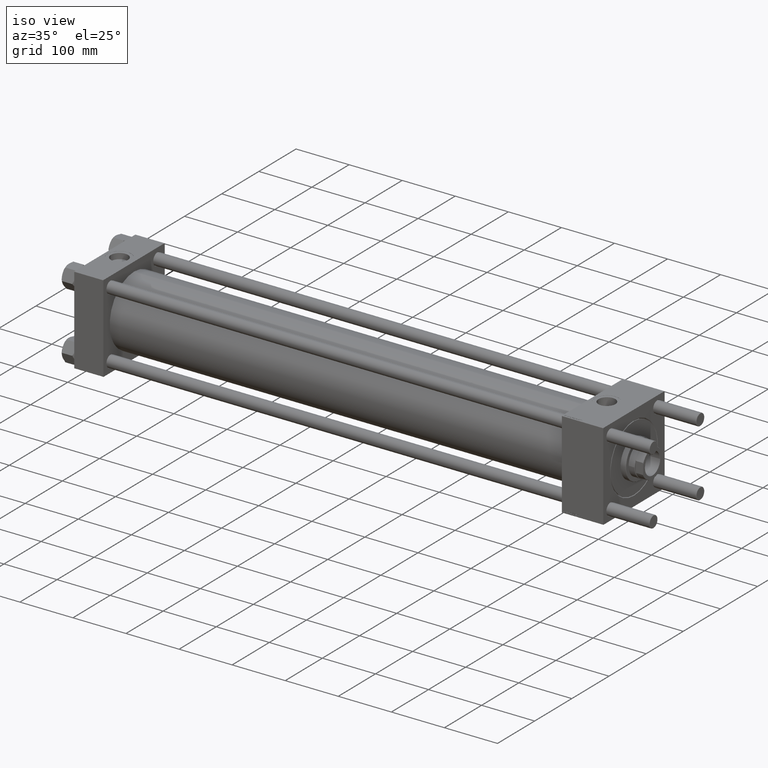
[diagram: clean part render]
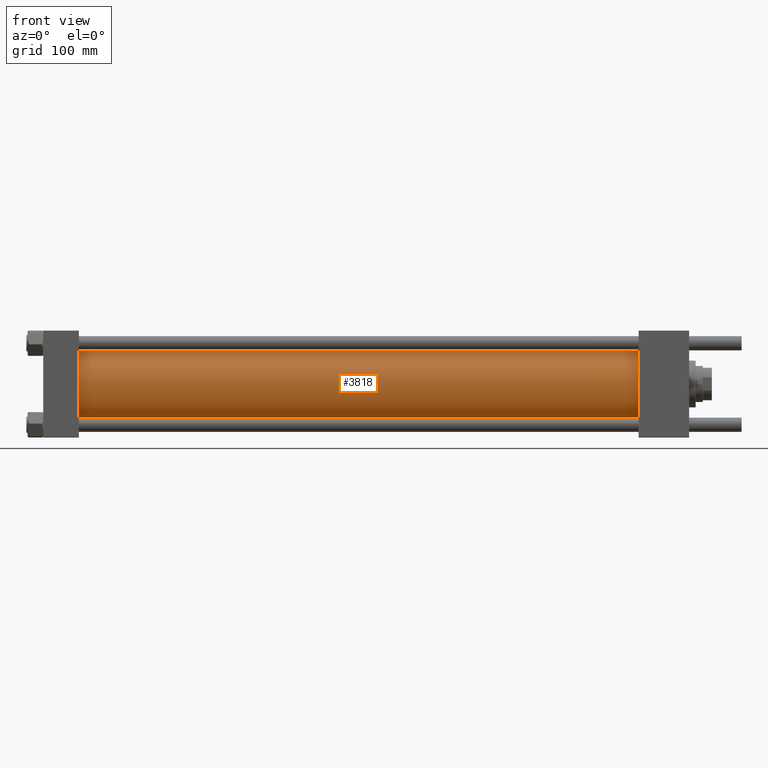
[diagram: tour spotlight — one face highlighted and labeled with its STEP entity id]
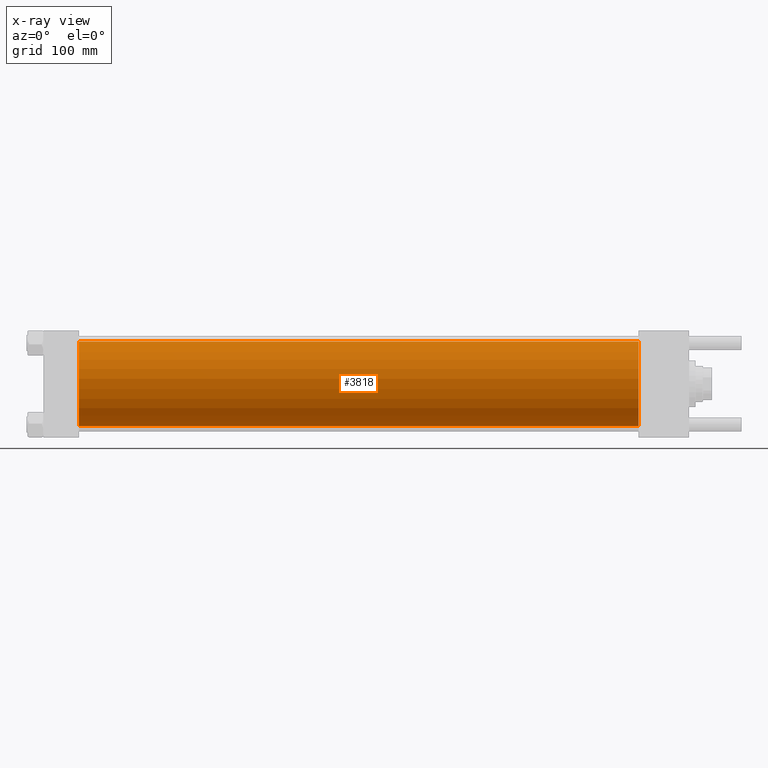
[diagram: x-ray of the same camera — body ghosted, this tour face saturated]
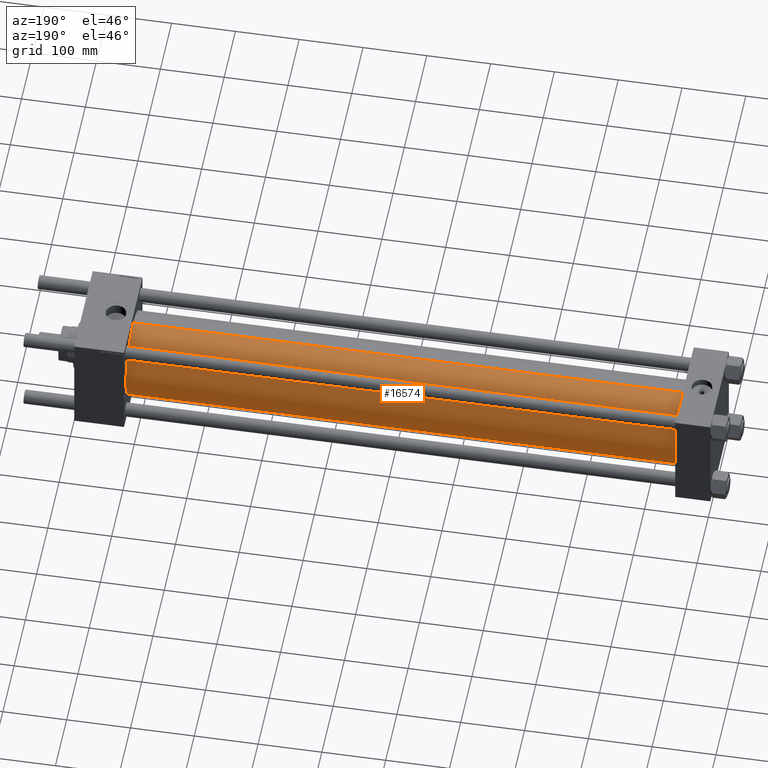
[diagram: tour spotlight — one face highlighted and labeled with its STEP entity id]
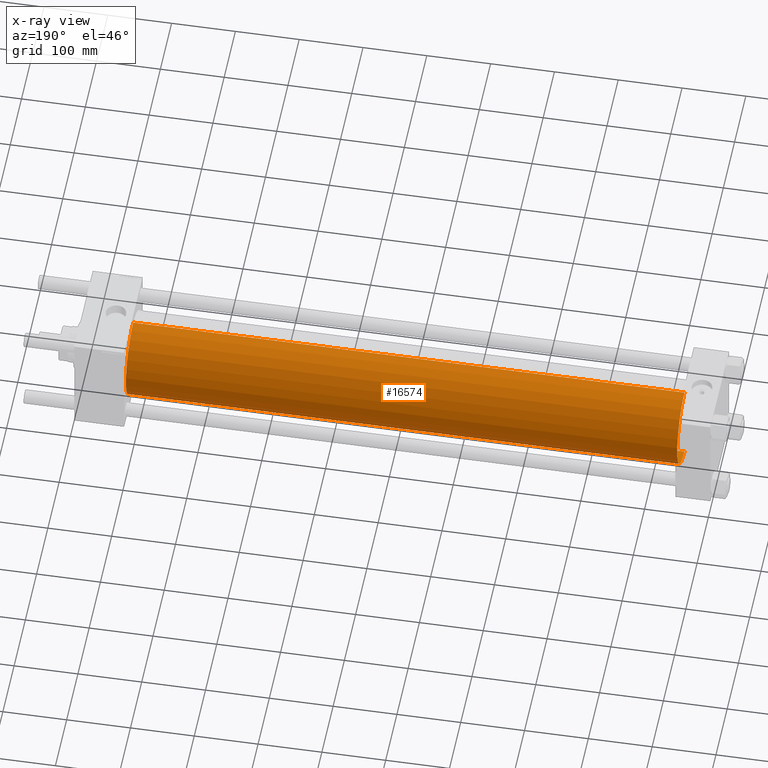
[diagram: x-ray of the same camera — body ghosted, this tour face saturated]
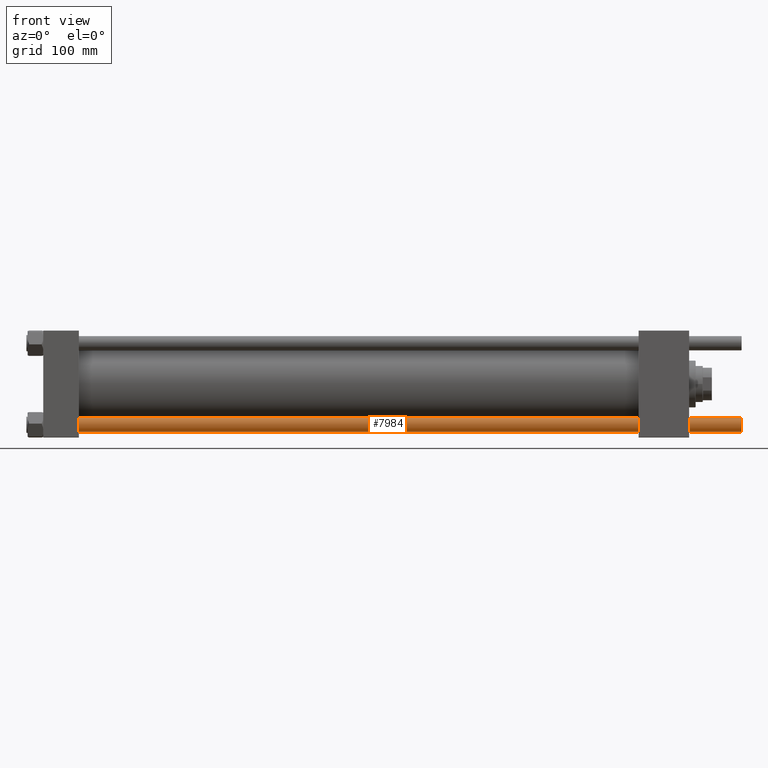
[diagram: tour spotlight — one face highlighted and labeled with its STEP entity id]
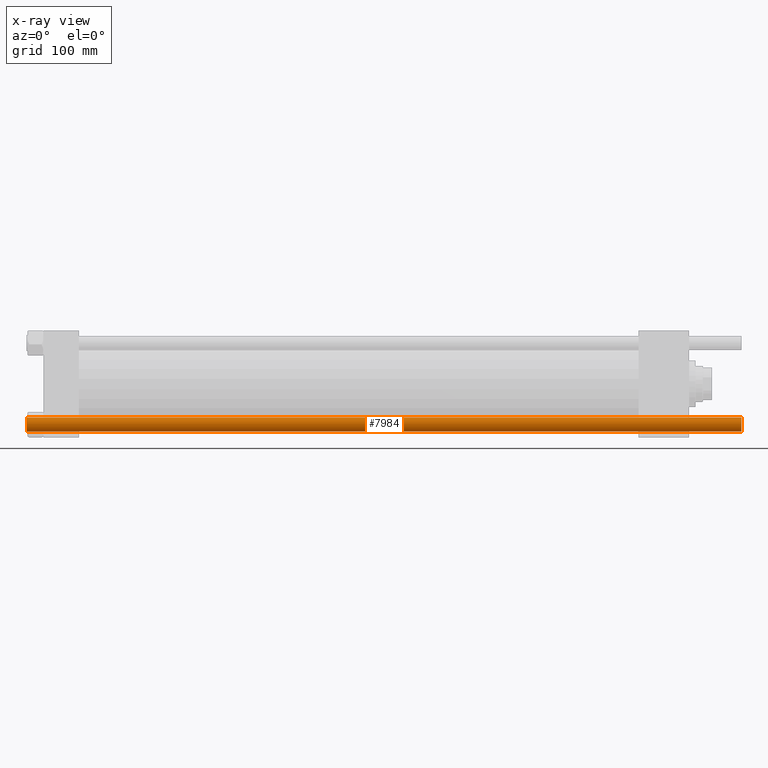
[diagram: x-ray of the same camera — body ghosted, this tour face saturated]
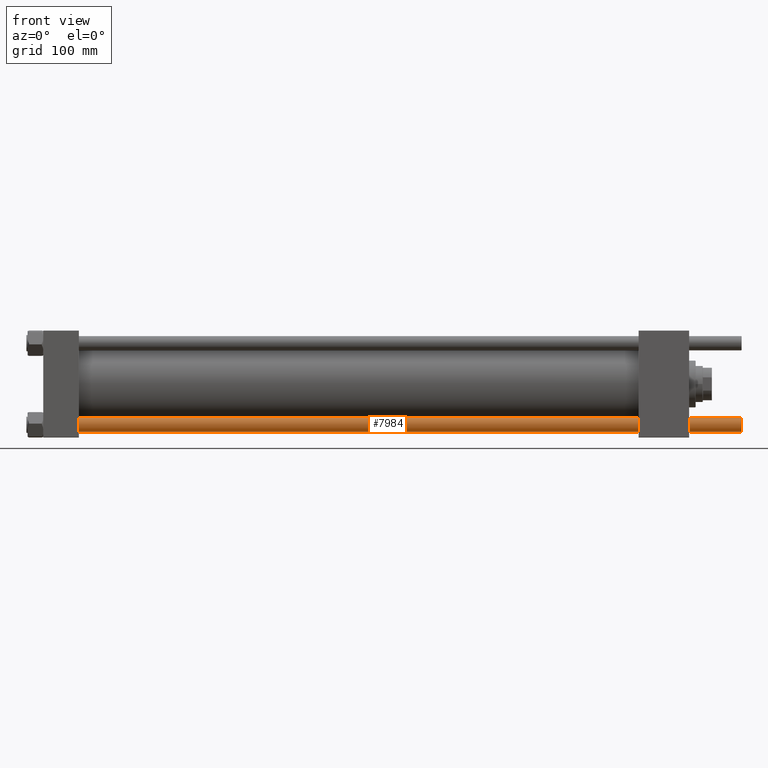
[diagram: tour spotlight — one face highlighted and labeled with its STEP entity id]
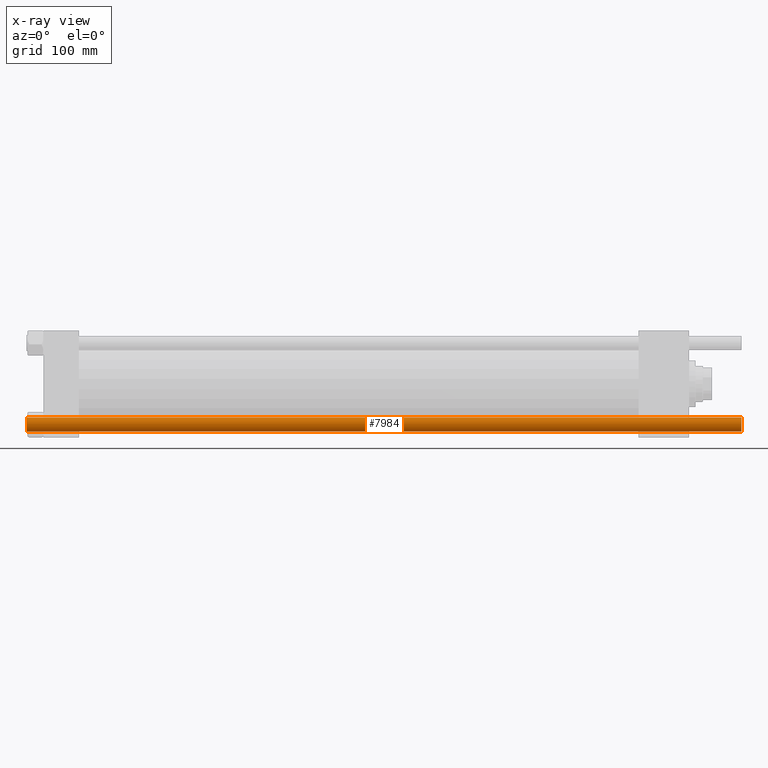
[diagram: x-ray of the same camera — body ghosted, this tour face saturated]
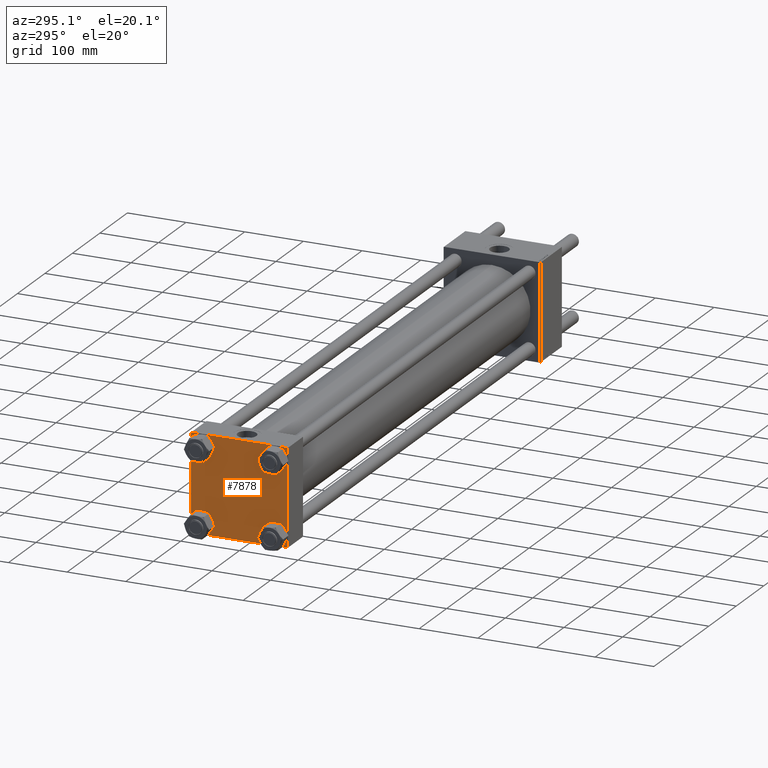
[diagram: tour spotlight — one face highlighted and labeled with its STEP entity id]
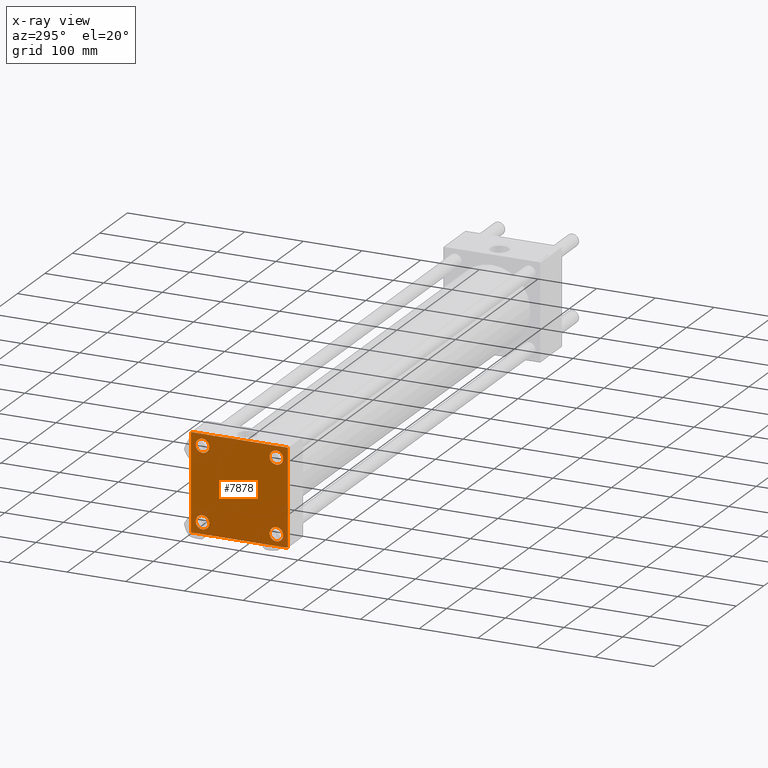
[diagram: x-ray of the same camera — body ghosted, this tour face saturated]
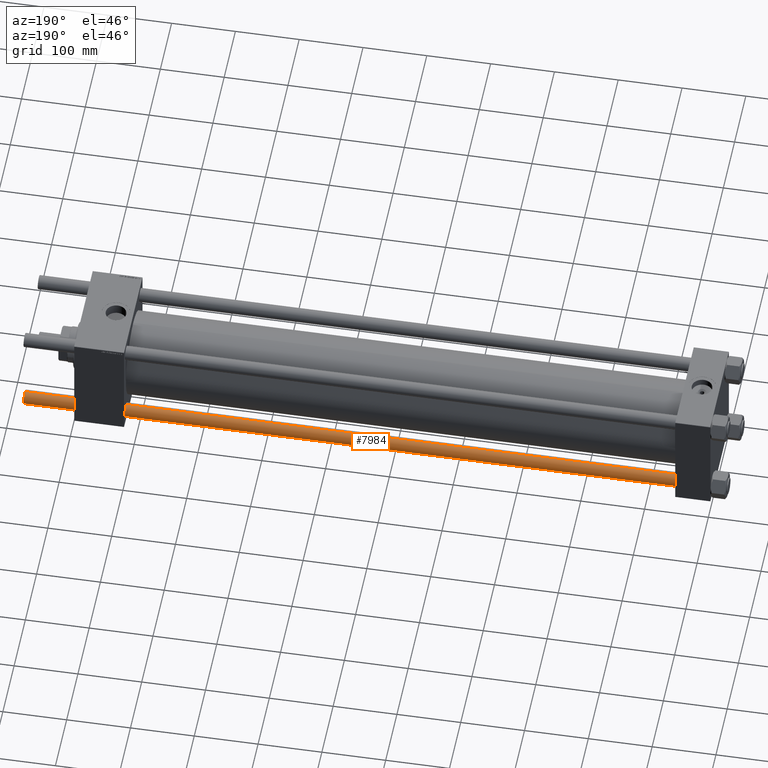
[diagram: tour spotlight — one face highlighted and labeled with its STEP entity id]
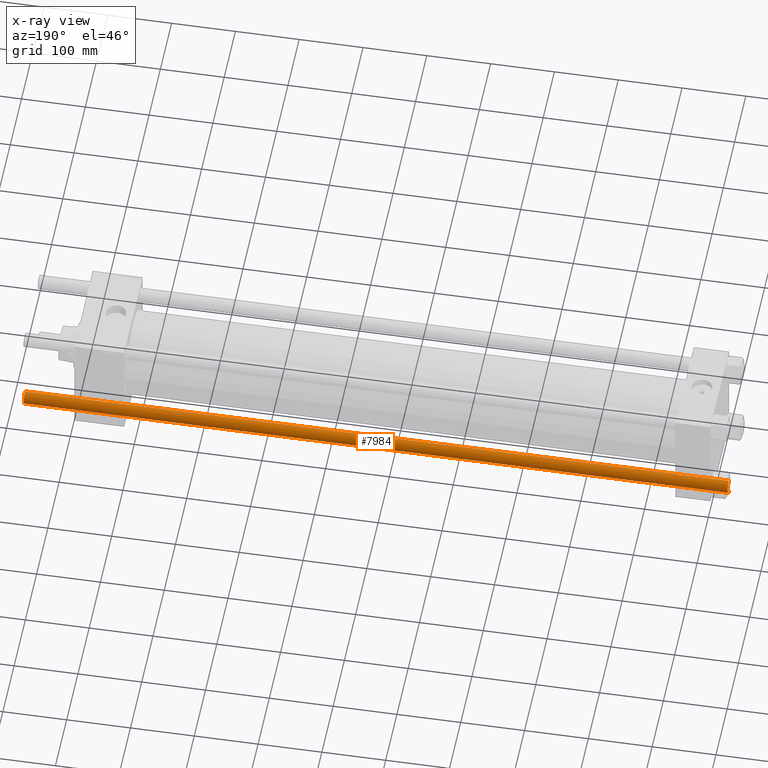
[diagram: x-ray of the same camera — body ghosted, this tour face saturated]
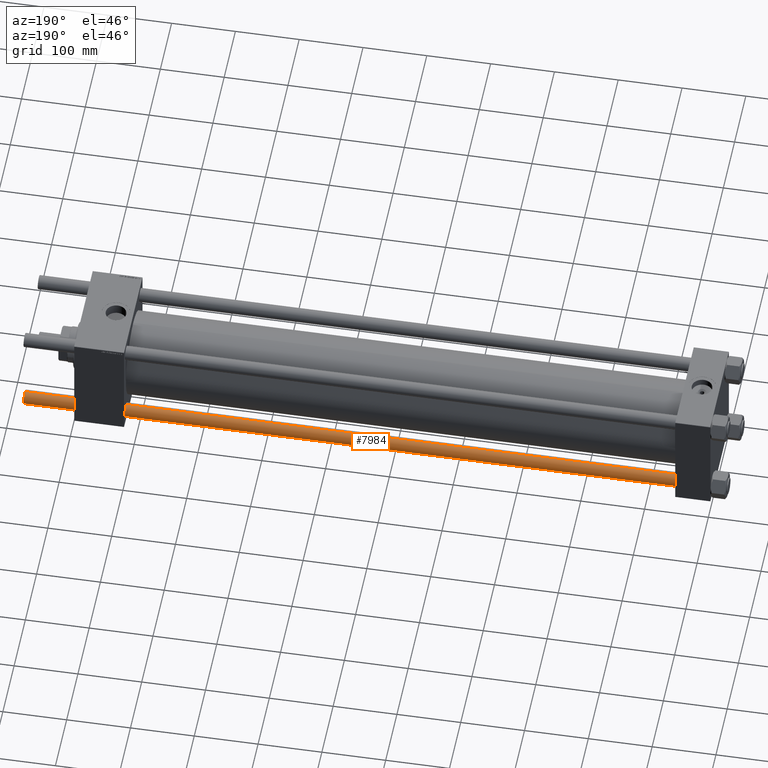
[diagram: tour spotlight — one face highlighted and labeled with its STEP entity id]
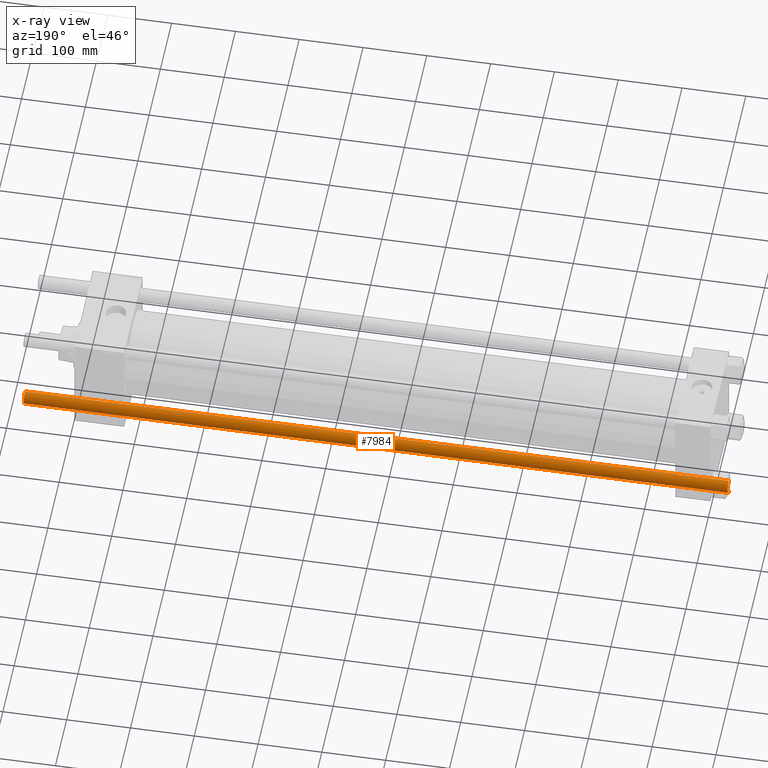
[diagram: x-ray of the same camera — body ghosted, this tour face saturated]
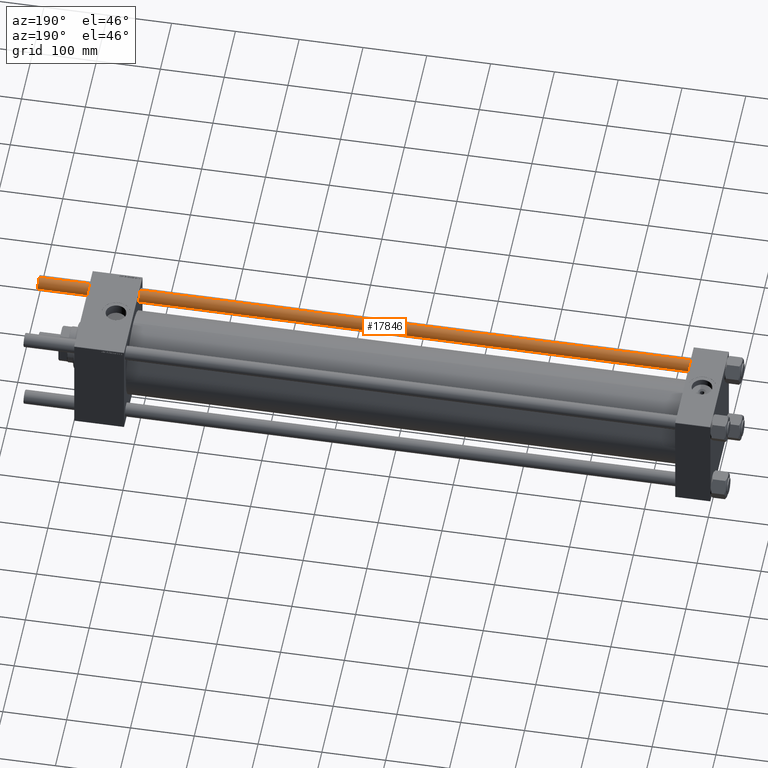
[diagram: tour spotlight — one face highlighted and labeled with its STEP entity id]
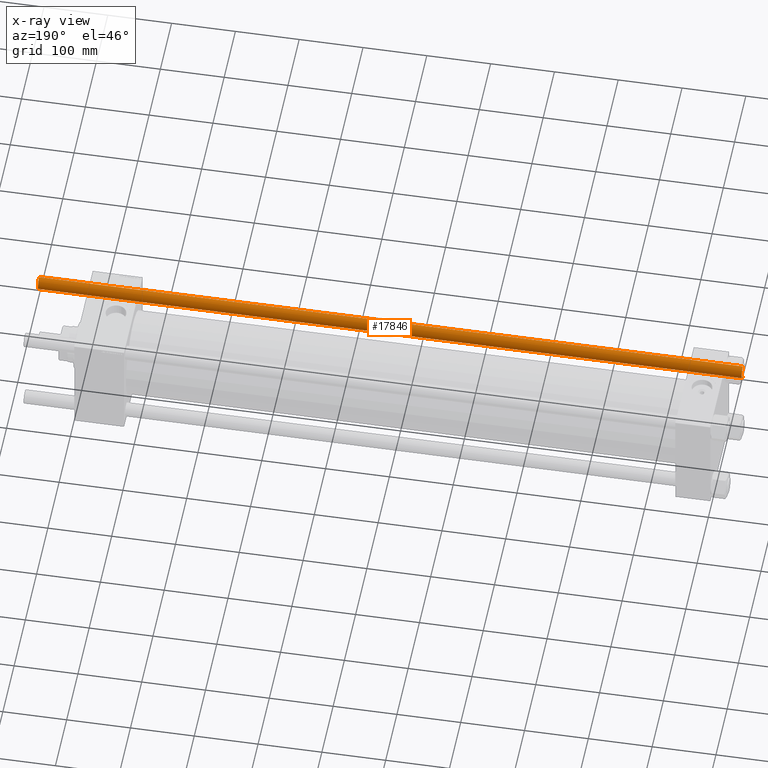
[diagram: x-ray of the same camera — body ghosted, this tour face saturated]
A machine part: a face-by-face anatomy tour. The part has 1206 B-rep faces; the first image is the clean iso view, then the 8 largest visible faces are spotlighted one at a time (largest first), each with its STEP entity span.

Face 1 — front view, entity #3818. An x-ray twin of the same camera follows (body ghosted, this face saturated) — the face is partly hidden behind the body. In plain terms, the highlighted cylindrical surface (partial cylindrical patch) has radius 65.5 mm, axis along (-1, -0, -0).
Definition (entity closure, byte-faithful):
#498 = EDGE_CURVE ( 'NONE', #13825, #52930, #10566, .T. ) ;
#511 = DIRECTION ( 'NONE',  ( -1.000000000000000000, -0.000000000000000000, -0.000000000000000000 ) ) ;
#1147 = DIRECTION ( 'NONE',  ( -1.000000000000000000, -0.000000000000000000, -0.000000000000000000 ) ) ;
#3818 = ADVANCED_FACE ( 'NONE', ( #27126 ), #22224, .T. ) ;
#5772 = LINE ( 'NONE', #10390, #30183 ) ;
#5943 = AXIS2_PLACEMENT_3D ( 'NONE', #52382, #12145, #8376 ) ;
#8376 = DIRECTION ( 'NONE',  ( 0.000000000000000000, 0.000000000000000000, 1.000000000000000000 ) ) ;
#9191 = CARTESIAN_POINT ( 'NONE',  ( 919.0000000000000000, -2.602085213965210642E-15, 0.000000000000000000 ) ) ;
#10390 = CARTESIAN_POINT ( 'NONE',  ( 919.0000000000000000, -2.602085213965210642E-15, 65.50000000000001421 ) ) ;
#10566 = CIRCLE ( 'NONE', #5943, 65.50000000000001421 ) ;
#11417 = DIRECTION ( 'NONE',  ( 0.000000000000000000, 0.000000000000000000, -1.000000000000000000 ) ) ;
#12145 = DIRECTION ( 'NONE',  ( 1.000000000000000000, -0.000000000000000000, -0.000000000000000000 ) ) ;
#12173 = EDGE_CURVE ( 'NONE', #22164, #13825, #5772, .T. ) ;
#13737 = EDGE_LOOP ( 'NONE', ( #53829, #25988, #16500, #18319 ) ) ;
#13825 = VERTEX_POINT ( 'NONE', #17984 ) ;
#16500 = ORIENTED_EDGE ( 'NONE', *, *, #12173, .T. ) ;
#17984 = CARTESIAN_POINT ( 'NONE',  ( 55.00000000000004974, -2.602085213965210642E-15, 65.50000000000001421 ) ) ;
#18319 = ORIENTED_EDGE ( 'NONE', *, *, #498, .T. ) ;
#18998 = DIRECTION ( 'NONE',  ( 0.000000000000000000, 0.000000000000000000, 1.000000000000000000 ) ) ;
#22164 = VERTEX_POINT ( 'NONE', #50107 ) ;
#22224 = CYLINDRICAL_SURFACE ( 'NONE', #25424, 65.50000000000001421 ) ;
#22855 = CIRCLE ( 'NONE', #49630, 65.50000000000001421 ) ;
#23804 = CARTESIAN_POINT ( 'NONE',  ( 55.00000000000004974, 5.419351320449954973E-15, -65.50000000000001421 ) ) ;
#25424 = AXIS2_PLACEMENT_3D ( 'NONE', #9191, #26857, #18998 ) ;
#25988 = ORIENTED_EDGE ( 'NONE', *, *, #50412, .F. ) ;
#26857 = DIRECTION ( 'NONE',  ( -1.000000000000000000, -0.000000000000000000, -0.000000000000000000 ) ) ;
#27126 = FACE_OUTER_BOUND ( 'NONE', #13737, .T. ) ;
#30183 = VECTOR ( 'NONE', #1147, 1000.000000000000000 ) ;
#33486 = EDGE_CURVE ( 'NONE', #56220, #52930, #45358, .T. ) ;
#43259 = CARTESIAN_POINT ( 'NONE',  ( 919.0000000000000000, -2.602085213965210642E-15, 0.000000000000000000 ) ) ;
#43292 = CARTESIAN_POINT ( 'NONE',  ( 919.0000000000000000, 5.419351320449954973E-15, -65.50000000000001421 ) ) ;
#45358 = LINE ( 'NONE', #49703, #54799 ) ;
#49630 = AXIS2_PLACEMENT_3D ( 'NONE', #43259, #51958, #11417 ) ;
#49703 = CARTESIAN_POINT ( 'NONE',  ( 919.0000000000000000, 5.419351320449954973E-15, -65.50000000000001421 ) ) ;
#50107 = CARTESIAN_POINT ( 'NONE',  ( 919.0000000000000000, -2.602085213965210642E-15, 65.50000000000001421 ) ) ;
#50412 = EDGE_CURVE ( 'NONE', #22164, #56220, #22855, .T. ) ;
#51958 = DIRECTION ( 'NONE',  ( 1.000000000000000000, 0.000000000000000000, 0.000000000000000000 ) ) ;
#52382 = CARTESIAN_POINT ( 'NONE',  ( 55.00000000000004974, -2.602085213965210642E-15, 0.000000000000000000 ) ) ;
#52930 = VERTEX_POINT ( 'NONE', #23804 ) ;
#53829 = ORIENTED_EDGE ( 'NONE', *, *, #33486, .F. ) ;
#54799 = VECTOR ( 'NONE', #511, 1000.000000000000000 ) ;
#56220 = VERTEX_POINT ( 'NONE', #43292 ) ;

Face 2 — auxiliary view, entity #16574. An x-ray twin of the same camera follows (body ghosted, this face saturated) — the face is partly hidden behind the body. In plain terms, the highlighted cylindrical surface (partial cylindrical patch) has radius 65.5 mm, axis along (-1, -0, -0).
Definition (entity closure, byte-faithful):
#511 = DIRECTION ( 'NONE',  ( -1.000000000000000000, -0.000000000000000000, -0.000000000000000000 ) ) ;
#1147 = DIRECTION ( 'NONE',  ( -1.000000000000000000, -0.000000000000000000, -0.000000000000000000 ) ) ;
#3316 = DIRECTION ( 'NONE',  ( 0.000000000000000000, 0.000000000000000000, 1.000000000000000000 ) ) ;
#3702 = CARTESIAN_POINT ( 'NONE',  ( 919.0000000000000000, -2.602085213965210642E-15, 0.000000000000000000 ) ) ;
#4563 = CARTESIAN_POINT ( 'NONE',  ( 55.00000000000004974, -2.602085213965210642E-15, 0.000000000000000000 ) ) ;
#5772 = LINE ( 'NONE', #10390, #30183 ) ;
#7648 = DIRECTION ( 'NONE',  ( -1.000000000000000000, -0.000000000000000000, -0.000000000000000000 ) ) ;
#10390 = CARTESIAN_POINT ( 'NONE',  ( 919.0000000000000000, -2.602085213965210642E-15, 65.50000000000001421 ) ) ;
#10762 = EDGE_LOOP ( 'NONE', ( #24502, #54976, #16394, #18721 ) ) ;
#11101 = CIRCLE ( 'NONE', #43462, 65.50000000000001421 ) ;
#11134 = CYLINDRICAL_SURFACE ( 'NONE', #35877, 65.50000000000001421 ) ;
#12051 = AXIS2_PLACEMENT_3D ( 'NONE', #3702, #21354, #25993 ) ;
#12173 = EDGE_CURVE ( 'NONE', #22164, #13825, #5772, .T. ) ;
#13825 = VERTEX_POINT ( 'NONE', #17984 ) ;
#16394 = ORIENTED_EDGE ( 'NONE', *, *, #23401, .T. ) ;
#16574 = ADVANCED_FACE ( 'NONE', ( #28527 ), #11134, .T. ) ;
#17984 = CARTESIAN_POINT ( 'NONE',  ( 55.00000000000004974, -2.602085213965210642E-15, 65.50000000000001421 ) ) ;
#18721 = ORIENTED_EDGE ( 'NONE', *, *, #12173, .F. ) ;
#21354 = DIRECTION ( 'NONE',  ( 1.000000000000000000, 0.000000000000000000, 0.000000000000000000 ) ) ;
#22164 = VERTEX_POINT ( 'NONE', #50107 ) ;
#23401 = EDGE_CURVE ( 'NONE', #52930, #13825, #11101, .T. ) ;
#23804 = CARTESIAN_POINT ( 'NONE',  ( 55.00000000000004974, 5.419351320449954973E-15, -65.50000000000001421 ) ) ;
#24502 = ORIENTED_EDGE ( 'NONE', *, *, #28338, .F. ) ;
#25993 = DIRECTION ( 'NONE',  ( 0.000000000000000000, 0.000000000000000000, -1.000000000000000000 ) ) ;
#26561 = DIRECTION ( 'NONE',  ( 0.000000000000000000, 0.000000000000000000, 1.000000000000000000 ) ) ;
#26847 = DIRECTION ( 'NONE',  ( 1.000000000000000000, -0.000000000000000000, -0.000000000000000000 ) ) ;
#28338 = EDGE_CURVE ( 'NONE', #56220, #22164, #42552, .T. ) ;
#28527 = FACE_OUTER_BOUND ( 'NONE', #10762, .T. ) ;
#30183 = VECTOR ( 'NONE', #1147, 1000.000000000000000 ) ;
#33486 = EDGE_CURVE ( 'NONE', #56220, #52930, #45358, .T. ) ;
#35877 = AXIS2_PLACEMENT_3D ( 'NONE', #47314, #7648, #3316 ) ;
#42552 = CIRCLE ( 'NONE', #12051, 65.50000000000001421 ) ;
#43292 = CARTESIAN_POINT ( 'NONE',  ( 919.0000000000000000, 5.419351320449954973E-15, -65.50000000000001421 ) ) ;
#43462 = AXIS2_PLACEMENT_3D ( 'NONE', #4563, #26847, #26561 ) ;
#45358 = LINE ( 'NONE', #49703, #54799 ) ;
#47314 = CARTESIAN_POINT ( 'NONE',  ( 919.0000000000000000, -2.602085213965210642E-15, 0.000000000000000000 ) ) ;
#49703 = CARTESIAN_POINT ( 'NONE',  ( 919.0000000000000000, 5.419351320449954973E-15, -65.50000000000001421 ) ) ;
#50107 = CARTESIAN_POINT ( 'NONE',  ( 919.0000000000000000, -2.602085213965210642E-15, 65.50000000000001421 ) ) ;
#52930 = VERTEX_POINT ( 'NONE', #23804 ) ;
#54799 = VECTOR ( 'NONE', #511, 1000.000000000000000 ) ;
#54976 = ORIENTED_EDGE ( 'NONE', *, *, #33486, .T. ) ;
#56220 = VERTEX_POINT ( 'NONE', #43292 ) ;

Face 3 — front view, entity #7984. An x-ray twin of the same camera follows (body ghosted, this face saturated) — the face is partly hidden behind the body. In plain terms, the highlighted cylindrical surface (edge-blend (fillet) strip) has radius 11 mm, axis along (-1, 0, -0).
Definition (entity closure, byte-faithful):
#1160 = DIRECTION ( 'NONE',  ( 1.000000000000000000, 0.000000000000000000, 0.000000000000000000 ) ) ;
#1654 = EDGE_CURVE ( 'NONE', #14965, #31231, #24763, .T. ) ;
#2330 = EDGE_CURVE ( 'NONE', #23510, #26947, #8227, .T. ) ;
#2770 = DIRECTION ( 'NONE',  ( -0.000000000000000000, -0.000000000000000000, -1.000000000000000000 ) ) ;
#3239 = CIRCLE ( 'NONE', #16167, 11.00000000000000000 ) ;
#5661 = DIRECTION ( 'NONE',  ( -1.000000000000000000, 0.000000000000000000, 0.000000000000000000 ) ) ;
#7931 = CARTESIAN_POINT ( 'NONE',  ( 11.00000000000000000, 1.347111479062088405E-15, 1104.000000000000000 ) ) ;
#7984 = ADVANCED_FACE ( 'NONE', ( #53150 ), #49651, .T. ) ;
#8227 = LINE ( 'NONE', #7931, #31868 ) ;
#13058 = CIRCLE ( 'NONE', #31568, 11.00000000000000000 ) ;
#14965 = VERTEX_POINT ( 'NONE', #37286 ) ;
#16167 = AXIS2_PLACEMENT_3D ( 'NONE', #40538, #40822, #1160 ) ;
#17562 = DIRECTION ( 'NONE',  ( -0.000000000000000000, -0.000000000000000000, -1.000000000000000000 ) ) ;
#19565 = CARTESIAN_POINT ( 'NONE',  ( 11.00000000000000000, 1.347111479062088405E-15, 1103.500000000000455 ) ) ;
#22057 = CARTESIAN_POINT ( 'NONE',  ( 11.00000000000000000, 1.347111479062088405E-15, 0.5000000000001669775 ) ) ;
#22561 = VECTOR ( 'NONE', #2770, 1000.000000000000000 ) ;
#23510 = VERTEX_POINT ( 'NONE', #19565 ) ;
#24763 = LINE ( 'NONE', #42421, #22561 ) ;
#26895 = EDGE_CURVE ( 'NONE', #14965, #23510, #13058, .T. ) ;
#26947 = VERTEX_POINT ( 'NONE', #22057 ) ;
#29032 = DIRECTION ( 'NONE',  ( 1.000000000000000000, 0.000000000000000000, 0.000000000000000000 ) ) ;
#31231 = VERTEX_POINT ( 'NONE', #37340 ) ;
#31568 = AXIS2_PLACEMENT_3D ( 'NONE', #37713, #51029, #29032 ) ;
#31868 = VECTOR ( 'NONE', #44111, 1000.000000000000000 ) ;
#32628 = EDGE_LOOP ( 'NONE', ( #40820, #39348, #33279, #53140 ) ) ;
#33279 = ORIENTED_EDGE ( 'NONE', *, *, #42802, .T. ) ;
#37286 = CARTESIAN_POINT ( 'NONE',  ( -11.00000000000000000, 0.000000000000000000, 1103.500000000000455 ) ) ;
#37340 = CARTESIAN_POINT ( 'NONE',  ( -11.00000000000000000, 0.000000000000000000, 0.5000000000001669775 ) ) ;
#37713 = CARTESIAN_POINT ( 'NONE',  ( 0.000000000000000000, 0.000000000000000000, 1103.500000000000455 ) ) ;
#39348 = ORIENTED_EDGE ( 'NONE', *, *, #2330, .T. ) ;
#40119 = CARTESIAN_POINT ( 'NONE',  ( 0.000000000000000000, 0.000000000000000000, 1104.000000000000000 ) ) ;
#40538 = CARTESIAN_POINT ( 'NONE',  ( 0.000000000000000000, 0.000000000000000000, 0.5000000000001669775 ) ) ;
#40820 = ORIENTED_EDGE ( 'NONE', *, *, #26895, .T. ) ;
#40822 = DIRECTION ( 'NONE',  ( -0.000000000000000000, -0.000000000000000000, 1.000000000000000000 ) ) ;
#42421 = CARTESIAN_POINT ( 'NONE',  ( -11.00000000000000000, 0.000000000000000000, 1104.000000000000000 ) ) ;
#42802 = EDGE_CURVE ( 'NONE', #26947, #31231, #3239, .T. ) ;
#44111 = DIRECTION ( 'NONE',  ( -0.000000000000000000, -0.000000000000000000, -1.000000000000000000 ) ) ;
#49651 = CYLINDRICAL_SURFACE ( 'NONE', #54211, 11.00000000000000000 ) ;
#51029 = DIRECTION ( 'NONE',  ( 0.000000000000000000, 0.000000000000000000, -1.000000000000000000 ) ) ;
#53140 = ORIENTED_EDGE ( 'NONE', *, *, #1654, .F. ) ;
#53150 = FACE_OUTER_BOUND ( 'NONE', #32628, .T. ) ;
#54211 = AXIS2_PLACEMENT_3D ( 'NONE', #40119, #17562, #5661 ) ;

Face 4 — front view, entity #7984. An x-ray twin of the same camera follows (body ghosted, this face saturated) — the face is partly hidden behind the body. In plain terms, the highlighted cylindrical surface (edge-blend (fillet) strip) has radius 11 mm, axis along (1, 0, 0).
Definition (entity closure, byte-faithful):
#1160 = DIRECTION ( 'NONE',  ( 1.000000000000000000, 0.000000000000000000, 0.000000000000000000 ) ) ;
#1654 = EDGE_CURVE ( 'NONE', #14965, #31231, #24763, .T. ) ;
#2330 = EDGE_CURVE ( 'NONE', #23510, #26947, #8227, .T. ) ;
#2770 = DIRECTION ( 'NONE',  ( -0.000000000000000000, -0.000000000000000000, -1.000000000000000000 ) ) ;
#3239 = CIRCLE ( 'NONE', #16167, 11.00000000000000000 ) ;
#5661 = DIRECTION ( 'NONE',  ( -1.000000000000000000, 0.000000000000000000, 0.000000000000000000 ) ) ;
#7931 = CARTESIAN_POINT ( 'NONE',  ( 11.00000000000000000, 1.347111479062088405E-15, 1104.000000000000000 ) ) ;
#7984 = ADVANCED_FACE ( 'NONE', ( #53150 ), #49651, .T. ) ;
#8227 = LINE ( 'NONE', #7931, #31868 ) ;
#13058 = CIRCLE ( 'NONE', #31568, 11.00000000000000000 ) ;
#14965 = VERTEX_POINT ( 'NONE', #37286 ) ;
#16167 = AXIS2_PLACEMENT_3D ( 'NONE', #40538, #40822, #1160 ) ;
#17562 = DIRECTION ( 'NONE',  ( -0.000000000000000000, -0.000000000000000000, -1.000000000000000000 ) ) ;
#19565 = CARTESIAN_POINT ( 'NONE',  ( 11.00000000000000000, 1.347111479062088405E-15, 1103.500000000000455 ) ) ;
#22057 = CARTESIAN_POINT ( 'NONE',  ( 11.00000000000000000, 1.347111479062088405E-15, 0.5000000000001669775 ) ) ;
#22561 = VECTOR ( 'NONE', #2770, 1000.000000000000000 ) ;
#23510 = VERTEX_POINT ( 'NONE', #19565 ) ;
#24763 = LINE ( 'NONE', #42421, #22561 ) ;
#26895 = EDGE_CURVE ( 'NONE', #14965, #23510, #13058, .T. ) ;
#26947 = VERTEX_POINT ( 'NONE', #22057 ) ;
#29032 = DIRECTION ( 'NONE',  ( 1.000000000000000000, 0.000000000000000000, 0.000000000000000000 ) ) ;
#31231 = VERTEX_POINT ( 'NONE', #37340 ) ;
#31568 = AXIS2_PLACEMENT_3D ( 'NONE', #37713, #51029, #29032 ) ;
#31868 = VECTOR ( 'NONE', #44111, 1000.000000000000000 ) ;
#32628 = EDGE_LOOP ( 'NONE', ( #40820, #39348, #33279, #53140 ) ) ;
#33279 = ORIENTED_EDGE ( 'NONE', *, *, #42802, .T. ) ;
#37286 = CARTESIAN_POINT ( 'NONE',  ( -11.00000000000000000, 0.000000000000000000, 1103.500000000000455 ) ) ;
#37340 = CARTESIAN_POINT ( 'NONE',  ( -11.00000000000000000, 0.000000000000000000, 0.5000000000001669775 ) ) ;
#37713 = CARTESIAN_POINT ( 'NONE',  ( 0.000000000000000000, 0.000000000000000000, 1103.500000000000455 ) ) ;
#39348 = ORIENTED_EDGE ( 'NONE', *, *, #2330, .T. ) ;
#40119 = CARTESIAN_POINT ( 'NONE',  ( 0.000000000000000000, 0.000000000000000000, 1104.000000000000000 ) ) ;
#40538 = CARTESIAN_POINT ( 'NONE',  ( 0.000000000000000000, 0.000000000000000000, 0.5000000000001669775 ) ) ;
#40820 = ORIENTED_EDGE ( 'NONE', *, *, #26895, .T. ) ;
#40822 = DIRECTION ( 'NONE',  ( -0.000000000000000000, -0.000000000000000000, 1.000000000000000000 ) ) ;
#42421 = CARTESIAN_POINT ( 'NONE',  ( -11.00000000000000000, 0.000000000000000000, 1104.000000000000000 ) ) ;
#42802 = EDGE_CURVE ( 'NONE', #26947, #31231, #3239, .T. ) ;
#44111 = DIRECTION ( 'NONE',  ( -0.000000000000000000, -0.000000000000000000, -1.000000000000000000 ) ) ;
#49651 = CYLINDRICAL_SURFACE ( 'NONE', #54211, 11.00000000000000000 ) ;
#51029 = DIRECTION ( 'NONE',  ( 0.000000000000000000, 0.000000000000000000, -1.000000000000000000 ) ) ;
#53140 = ORIENTED_EDGE ( 'NONE', *, *, #1654, .F. ) ;
#53150 = FACE_OUTER_BOUND ( 'NONE', #32628, .T. ) ;
#54211 = AXIS2_PLACEMENT_3D ( 'NONE', #40119, #17562, #5661 ) ;

Face 5 — auxiliary view, entity #7878. An x-ray twin of the same camera follows (body ghosted, this face saturated) — the face is partly hidden behind the body. In plain terms, the highlighted planar face has unit normal (-1, 0, 0).
Definition (entity closure, byte-faithful):
#130 = CARTESIAN_POINT ( 'NONE',  ( 0.000000000000000000, -62.94999999999998153, 62.95000000000001705 ) ) ;
#627 = AXIS2_PLACEMENT_3D ( 'NONE', #16980, #30599, #20737 ) ;
#653 = CARTESIAN_POINT ( 'NONE',  ( 0.000000000000000000, 62.95000000000000284, 62.95000000000000284 ) ) ;
#818 = DIRECTION ( 'NONE',  ( 0.000000000000000000, 0.7071067811865474617, -0.7071067811865474617 ) ) ;
#1074 = EDGE_CURVE ( 'NONE', #30307, #40605, #10524, .T. ) ;
#1223 = EDGE_LOOP ( 'NONE', ( #53586, #46402, #20662, #10248, #46601, #40110, #1497, #6499 ) ) ;
#1369 = AXIS2_PLACEMENT_3D ( 'NONE', #25672, #30874, #3378 ) ;
#1497 = ORIENTED_EDGE ( 'NONE', *, *, #48530, .F. ) ;
#3298 = EDGE_LOOP ( 'NONE', ( #49336, #15756 ) ) ;
#3378 = DIRECTION ( 'NONE',  ( 0.000000000000000000, 0.000000000000000000, 1.000000000000000000 ) ) ;
#3421 = EDGE_CURVE ( 'NONE', #23578, #34295, #56460, .T. ) ;
#3428 = CARTESIAN_POINT ( 'NONE',  ( 0.000000000000000000, 62.95000000000000284, -62.95000000000000284 ) ) ;
#3894 = LINE ( 'NONE', #21260, #9826 ) ;
#3923 = DIRECTION ( 'NONE',  ( 1.000000000000000000, -0.000000000000000000, -0.000000000000000000 ) ) ;
#3991 = CARTESIAN_POINT ( 'NONE',  ( 0.000000000000000000, -62.94999999999998153, -62.95000000000001705 ) ) ;
#4210 = CARTESIAN_POINT ( 'NONE',  ( 0.000000000000000000, -62.94999999999998153, -51.45000000000000995 ) ) ;
#4479 = EDGE_CURVE ( 'NONE', #34901, #18456, #31906, .T. ) ;
#4855 = VERTEX_POINT ( 'NONE', #13867 ) ;
#5156 = LINE ( 'NONE', #22811, #29409 ) ;
#5220 = ORIENTED_EDGE ( 'NONE', *, *, #41592, .T. ) ;
#5241 = CARTESIAN_POINT ( 'NONE',  ( 0.000000000000000000, -62.94999999999998153, 74.45000000000003126 ) ) ;
#5916 = VECTOR ( 'NONE', #13389, 1000.000000000000000 ) ;
#6499 = ORIENTED_EDGE ( 'NONE', *, *, #53477, .T. ) ;
#6728 = DIRECTION ( 'NONE',  ( 1.000000000000000000, -0.000000000000000000, -0.000000000000000000 ) ) ;
#7136 = EDGE_LOOP ( 'NONE', ( #30794, #5220 ) ) ;
#7823 = DIRECTION ( 'NONE',  ( 0.000000000000000000, 0.000000000000000000, -1.000000000000000000 ) ) ;
#7878 = ADVANCED_FACE ( 'NONE', ( #25092, #56926, #56633, #51436, #21029 ), #25673, .T. ) ;
#8362 = CARTESIAN_POINT ( 'NONE',  ( 0.000000000000000000, -62.94999999999998153, -74.45000000000003126 ) ) ;
#8584 = DIRECTION ( 'NONE',  ( 0.000000000000000000, -0.7071067811865376918, 0.7071067811865574537 ) ) ;
#9592 = CARTESIAN_POINT ( 'NONE',  ( 0.000000000000000000, -82.49999999999997158, 82.50000000000001421 ) ) ;
#9785 = VECTOR ( 'NONE', #30809, 1000.000000000000114 ) ;
#9826 = VECTOR ( 'NONE', #21544, 1000.000000000000000 ) ;
#10248 = ORIENTED_EDGE ( 'NONE', *, *, #37670, .T. ) ;
#10524 = CIRCLE ( 'NONE', #30933, 11.50000000000001066 ) ;
#10832 = VERTEX_POINT ( 'NONE', #33979 ) ;
#11445 = CARTESIAN_POINT ( 'NONE',  ( 0.000000000000000000, 82.50000000000002842, 82.00000000000005684 ) ) ;
#11490 = EDGE_CURVE ( 'NONE', #40605, #30307, #19075, .T. ) ;
#12038 = EDGE_CURVE ( 'NONE', #22032, #43592, #50992, .T. ) ;
#12066 = CARTESIAN_POINT ( 'NONE',  ( 0.000000000000000000, 62.95000000000000284, 51.44999999999999574 ) ) ;
#12979 = DIRECTION ( 'NONE',  ( 0.000000000000000000, 0.000000000000000000, 1.000000000000000000 ) ) ;
#13389 = DIRECTION ( 'NONE',  ( 0.000000000000000000, -1.682156097916903588E-16, -1.000000000000000000 ) ) ;
#13832 = AXIS2_PLACEMENT_3D ( 'NONE', #130, #22402, #40063 ) ;
#13867 = CARTESIAN_POINT ( 'NONE',  ( 0.000000000000000000, -82.50000000000000000, -81.99999999999998579 ) ) ;
#14102 = EDGE_LOOP ( 'NONE', ( #21946, #53128 ) ) ;
#15241 = VERTEX_POINT ( 'NONE', #21278 ) ;
#15756 = ORIENTED_EDGE ( 'NONE', *, *, #4479, .T. ) ;
#15990 = CARTESIAN_POINT ( 'NONE',  ( 0.000000000000000000, 82.00000000000005684, -82.49999999999997158 ) ) ;
#16535 = DIRECTION ( 'NONE',  ( -0.000000000000000000, 0.7071067811865474617, 0.7071067811865474617 ) ) ;
#16611 = CIRCLE ( 'NONE', #13832, 11.50000000000001066 ) ;
#16917 = VERTEX_POINT ( 'NONE', #5241 ) ;
#16980 = CARTESIAN_POINT ( 'NONE',  ( 0.000000000000000000, 0.000000000000000000, 0.000000000000000000 ) ) ;
#17315 = DIRECTION ( 'NONE',  ( 1.000000000000000000, -0.000000000000000000, -0.000000000000000000 ) ) ;
#17952 = CIRCLE ( 'NONE', #55872, 11.50000000000001066 ) ;
#18456 = VERTEX_POINT ( 'NONE', #54486 ) ;
#18675 = CARTESIAN_POINT ( 'NONE',  ( 0.000000000000000000, -81.99999999999997158, 82.50000000000001421 ) ) ;
#18738 = ORIENTED_EDGE ( 'NONE', *, *, #11490, .T. ) ;
#19075 = CIRCLE ( 'NONE', #40332, 11.50000000000001066 ) ;
#20574 = CARTESIAN_POINT ( 'NONE',  ( 0.000000000000000000, 82.50000000000002842, -82.49999999999997158 ) ) ;
#20662 = ORIENTED_EDGE ( 'NONE', *, *, #12038, .T. ) ;
#20737 = DIRECTION ( 'NONE',  ( 0.000000000000000000, 0.000000000000000000, 1.000000000000000000 ) ) ;
#20900 = DIRECTION ( 'NONE',  ( 0.000000000000000000, 0.000000000000000000, 1.000000000000000000 ) ) ;
#21029 = FACE_OUTER_BOUND ( 'NONE', #1223, .T. ) ;
#21260 = CARTESIAN_POINT ( 'NONE',  ( 0.000000000000000000, 82.50000000000002842, 82.50000000000002842 ) ) ;
#21278 = CARTESIAN_POINT ( 'NONE',  ( 0.000000000000000000, 62.95000000000000284, 74.45000000000001705 ) ) ;
#21544 = DIRECTION ( 'NONE',  ( 0.000000000000000000, -1.000000000000000000, -8.410780489584519171E-17 ) ) ;
#21664 = VECTOR ( 'NONE', #8584, 999.9999999999998863 ) ;
#21804 = EDGE_CURVE ( 'NONE', #16917, #48119, #16611, .T. ) ;
#21946 = ORIENTED_EDGE ( 'NONE', *, *, #21804, .T. ) ;
#22032 = VERTEX_POINT ( 'NONE', #15990 ) ;
#22402 = DIRECTION ( 'NONE',  ( 1.000000000000000000, -0.000000000000000000, -0.000000000000000000 ) ) ;
#22811 = CARTESIAN_POINT ( 'NONE',  ( 0.000000000000000000, 82.25000000000002842, 82.25000000000002842 ) ) ;
#22954 = CARTESIAN_POINT ( 'NONE',  ( 0.000000000000000000, 82.25000000000001421, -82.25000000000001421 ) ) ;
#23578 = VERTEX_POINT ( 'NONE', #11445 ) ;
#25092 = FACE_BOUND ( 'NONE', #14102, .T. ) ;
#25672 = CARTESIAN_POINT ( 'NONE',  ( 0.000000000000000000, 62.95000000000000284, -62.95000000000000284 ) ) ;
#25673 = PLANE ( 'NONE',  #627 ) ;
#25682 = CARTESIAN_POINT ( 'NONE',  ( 0.000000000000000000, -82.25000000000115108, -82.24999999999886313 ) ) ;
#26285 = DIRECTION ( 'NONE',  ( 1.000000000000000000, -0.000000000000000000, -0.000000000000000000 ) ) ;
#28435 = DIRECTION ( 'NONE',  ( 1.000000000000000000, -0.000000000000000000, -0.000000000000000000 ) ) ;
#28807 = CARTESIAN_POINT ( 'NONE',  ( 0.000000000000000000, -82.00000000000000000, -82.50000000000000000 ) ) ;
#29040 = EDGE_CURVE ( 'NONE', #15241, #44093, #46218, .T. ) ;
#29155 = EDGE_CURVE ( 'NONE', #10832, #53839, #39115, .T. ) ;
#29409 = VECTOR ( 'NONE', #818, 1000.000000000000114 ) ;
#30307 = VERTEX_POINT ( 'NONE', #8362 ) ;
#30599 = DIRECTION ( 'NONE',  ( -1.000000000000000000, 0.000000000000000000, 0.000000000000000000 ) ) ;
#30758 = CARTESIAN_POINT ( 'NONE',  ( 0.000000000000000000, 82.50000000000002842, -82.00000000000000000 ) ) ;
#30794 = ORIENTED_EDGE ( 'NONE', *, *, #29040, .T. ) ;
#30809 = DIRECTION ( 'NONE',  ( -0.000000000000000000, -0.7071067811865474617, -0.7071067811865474617 ) ) ;
#30874 = DIRECTION ( 'NONE',  ( 1.000000000000000000, -0.000000000000000000, -0.000000000000000000 ) ) ;
#30933 = AXIS2_PLACEMENT_3D ( 'NONE', #51603, #6728, #20900 ) ;
#31009 = AXIS2_PLACEMENT_3D ( 'NONE', #3428, #26285, #57271 ) ;
#31131 = VECTOR ( 'NONE', #55886, 1000.000000000000000 ) ;
#31490 = VECTOR ( 'NONE', #16535, 1000.000000000000114 ) ;
#31708 = CIRCLE ( 'NONE', #45581, 11.50000000000001066 ) ;
#31906 = CIRCLE ( 'NONE', #31009, 11.50000000000001066 ) ;
#31912 = DIRECTION ( 'NONE',  ( 0.000000000000000000, 0.000000000000000000, 1.000000000000000000 ) ) ;
#32404 = AXIS2_PLACEMENT_3D ( 'NONE', #49272, #37387, #50707 ) ;
#32567 = EDGE_LOOP ( 'NONE', ( #18738, #47310 ) ) ;
#32781 = EDGE_CURVE ( 'NONE', #48119, #16917, #31708, .T. ) ;
#33979 = CARTESIAN_POINT ( 'NONE',  ( 0.000000000000000000, -82.49999999999997158, 82.00000000000001421 ) ) ;
#34295 = VERTEX_POINT ( 'NONE', #30758 ) ;
#34377 = LINE ( 'NONE', #25682, #21664 ) ;
#34901 = VERTEX_POINT ( 'NONE', #56234 ) ;
#34923 = CARTESIAN_POINT ( 'NONE',  ( 0.000000000000000000, -62.94999999999998153, 62.95000000000001705 ) ) ;
#35603 = VECTOR ( 'NONE', #7823, 1000.000000000000000 ) ;
#35668 = EDGE_CURVE ( 'NONE', #10832, #4855, #49260, .T. ) ;
#37387 = DIRECTION ( 'NONE',  ( 1.000000000000000000, -0.000000000000000000, -0.000000000000000000 ) ) ;
#37670 = EDGE_CURVE ( 'NONE', #43592, #4855, #34377, .T. ) ;
#38179 = VERTEX_POINT ( 'NONE', #47463 ) ;
#38971 = DIRECTION ( 'NONE',  ( 0.000000000000000000, 0.000000000000000000, 1.000000000000000000 ) ) ;
#39115 = LINE ( 'NONE', #47498, #31490 ) ;
#40051 = LINE ( 'NONE', #22954, #9785 ) ;
#40063 = DIRECTION ( 'NONE',  ( 0.000000000000000000, 0.000000000000000000, 1.000000000000000000 ) ) ;
#40110 = ORIENTED_EDGE ( 'NONE', *, *, #29155, .T. ) ;
#40180 = CIRCLE ( 'NONE', #1369, 11.50000000000001066 ) ;
#40332 = AXIS2_PLACEMENT_3D ( 'NONE', #3991, #17315, #12979 ) ;
#40605 = VERTEX_POINT ( 'NONE', #4210 ) ;
#41592 = EDGE_CURVE ( 'NONE', #44093, #15241, #17952, .T. ) ;
#43228 = EDGE_CURVE ( 'NONE', #18456, #34901, #40180, .T. ) ;
#43592 = VERTEX_POINT ( 'NONE', #28807 ) ;
#43706 = CARTESIAN_POINT ( 'NONE',  ( 0.000000000000000000, 82.50000000000002842, 82.50000000000002842 ) ) ;
#44093 = VERTEX_POINT ( 'NONE', #12066 ) ;
#45581 = AXIS2_PLACEMENT_3D ( 'NONE', #34923, #3923, #38971 ) ;
#45654 = CARTESIAN_POINT ( 'NONE',  ( 0.000000000000000000, -62.94999999999998153, 51.45000000000000995 ) ) ;
#46218 = CIRCLE ( 'NONE', #32404, 11.50000000000001066 ) ;
#46402 = ORIENTED_EDGE ( 'NONE', *, *, #46995, .T. ) ;
#46601 = ORIENTED_EDGE ( 'NONE', *, *, #35668, .F. ) ;
#46995 = EDGE_CURVE ( 'NONE', #34295, #22032, #40051, .T. ) ;
#47310 = ORIENTED_EDGE ( 'NONE', *, *, #1074, .T. ) ;
#47463 = CARTESIAN_POINT ( 'NONE',  ( 0.000000000000000000, 82.00000000000005684, 82.50000000000002842 ) ) ;
#47498 = CARTESIAN_POINT ( 'NONE',  ( 0.000000000000000000, -82.25000000000000000, 82.25000000000000000 ) ) ;
#48119 = VERTEX_POINT ( 'NONE', #45654 ) ;
#48530 = EDGE_CURVE ( 'NONE', #38179, #53839, #3894, .T. ) ;
#49260 = LINE ( 'NONE', #9592, #5916 ) ;
#49272 = CARTESIAN_POINT ( 'NONE',  ( 0.000000000000000000, 62.95000000000000284, 62.95000000000000284 ) ) ;
#49336 = ORIENTED_EDGE ( 'NONE', *, *, #43228, .T. ) ;
#50707 = DIRECTION ( 'NONE',  ( 0.000000000000000000, 0.000000000000000000, 1.000000000000000000 ) ) ;
#50992 = LINE ( 'NONE', #20574, #31131 ) ;
#51436 = FACE_BOUND ( 'NONE', #7136, .T. ) ;
#51603 = CARTESIAN_POINT ( 'NONE',  ( 0.000000000000000000, -62.94999999999998153, -62.95000000000001705 ) ) ;
#53128 = ORIENTED_EDGE ( 'NONE', *, *, #32781, .T. ) ;
#53477 = EDGE_CURVE ( 'NONE', #38179, #23578, #5156, .T. ) ;
#53586 = ORIENTED_EDGE ( 'NONE', *, *, #3421, .T. ) ;
#53839 = VERTEX_POINT ( 'NONE', #18675 ) ;
#54486 = CARTESIAN_POINT ( 'NONE',  ( 0.000000000000000000, 62.95000000000000284, -51.44999999999999574 ) ) ;
#55872 = AXIS2_PLACEMENT_3D ( 'NONE', #653, #28435, #31912 ) ;
#55886 = DIRECTION ( 'NONE',  ( 0.000000000000000000, -1.000000000000000000, -1.682156097916903588E-16 ) ) ;
#56234 = CARTESIAN_POINT ( 'NONE',  ( 0.000000000000000000, 62.95000000000000284, -74.45000000000001705 ) ) ;
#56460 = LINE ( 'NONE', #43706, #35603 ) ;
#56633 = FACE_BOUND ( 'NONE', #3298, .T. ) ;
#56926 = FACE_BOUND ( 'NONE', #32567, .T. ) ;
#57271 = DIRECTION ( 'NONE',  ( 0.000000000000000000, 0.000000000000000000, 1.000000000000000000 ) ) ;

Face 6 — auxiliary view, entity #7984. An x-ray twin of the same camera follows (body ghosted, this face saturated) — the face is partly hidden behind the body. In plain terms, the highlighted cylindrical surface (edge-blend (fillet) strip) has radius 11 mm, axis along (1, -0, -0).
Definition (entity closure, byte-faithful):
#1160 = DIRECTION ( 'NONE',  ( 1.000000000000000000, 0.000000000000000000, 0.000000000000000000 ) ) ;
#1654 = EDGE_CURVE ( 'NONE', #14965, #31231, #24763, .T. ) ;
#2330 = EDGE_CURVE ( 'NONE', #23510, #26947, #8227, .T. ) ;
#2770 = DIRECTION ( 'NONE',  ( -0.000000000000000000, -0.000000000000000000, -1.000000000000000000 ) ) ;
#3239 = CIRCLE ( 'NONE', #16167, 11.00000000000000000 ) ;
#5661 = DIRECTION ( 'NONE',  ( -1.000000000000000000, 0.000000000000000000, 0.000000000000000000 ) ) ;
#7931 = CARTESIAN_POINT ( 'NONE',  ( 11.00000000000000000, 1.347111479062088405E-15, 1104.000000000000000 ) ) ;
#7984 = ADVANCED_FACE ( 'NONE', ( #53150 ), #49651, .T. ) ;
#8227 = LINE ( 'NONE', #7931, #31868 ) ;
#13058 = CIRCLE ( 'NONE', #31568, 11.00000000000000000 ) ;
#14965 = VERTEX_POINT ( 'NONE', #37286 ) ;
#16167 = AXIS2_PLACEMENT_3D ( 'NONE', #40538, #40822, #1160 ) ;
#17562 = DIRECTION ( 'NONE',  ( -0.000000000000000000, -0.000000000000000000, -1.000000000000000000 ) ) ;
#19565 = CARTESIAN_POINT ( 'NONE',  ( 11.00000000000000000, 1.347111479062088405E-15, 1103.500000000000455 ) ) ;
#22057 = CARTESIAN_POINT ( 'NONE',  ( 11.00000000000000000, 1.347111479062088405E-15, 0.5000000000001669775 ) ) ;
#22561 = VECTOR ( 'NONE', #2770, 1000.000000000000000 ) ;
#23510 = VERTEX_POINT ( 'NONE', #19565 ) ;
#24763 = LINE ( 'NONE', #42421, #22561 ) ;
#26895 = EDGE_CURVE ( 'NONE', #14965, #23510, #13058, .T. ) ;
#26947 = VERTEX_POINT ( 'NONE', #22057 ) ;
#29032 = DIRECTION ( 'NONE',  ( 1.000000000000000000, 0.000000000000000000, 0.000000000000000000 ) ) ;
#31231 = VERTEX_POINT ( 'NONE', #37340 ) ;
#31568 = AXIS2_PLACEMENT_3D ( 'NONE', #37713, #51029, #29032 ) ;
#31868 = VECTOR ( 'NONE', #44111, 1000.000000000000000 ) ;
#32628 = EDGE_LOOP ( 'NONE', ( #40820, #39348, #33279, #53140 ) ) ;
#33279 = ORIENTED_EDGE ( 'NONE', *, *, #42802, .T. ) ;
#37286 = CARTESIAN_POINT ( 'NONE',  ( -11.00000000000000000, 0.000000000000000000, 1103.500000000000455 ) ) ;
#37340 = CARTESIAN_POINT ( 'NONE',  ( -11.00000000000000000, 0.000000000000000000, 0.5000000000001669775 ) ) ;
#37713 = CARTESIAN_POINT ( 'NONE',  ( 0.000000000000000000, 0.000000000000000000, 1103.500000000000455 ) ) ;
#39348 = ORIENTED_EDGE ( 'NONE', *, *, #2330, .T. ) ;
#40119 = CARTESIAN_POINT ( 'NONE',  ( 0.000000000000000000, 0.000000000000000000, 1104.000000000000000 ) ) ;
#40538 = CARTESIAN_POINT ( 'NONE',  ( 0.000000000000000000, 0.000000000000000000, 0.5000000000001669775 ) ) ;
#40820 = ORIENTED_EDGE ( 'NONE', *, *, #26895, .T. ) ;
#40822 = DIRECTION ( 'NONE',  ( -0.000000000000000000, -0.000000000000000000, 1.000000000000000000 ) ) ;
#42421 = CARTESIAN_POINT ( 'NONE',  ( -11.00000000000000000, 0.000000000000000000, 1104.000000000000000 ) ) ;
#42802 = EDGE_CURVE ( 'NONE', #26947, #31231, #3239, .T. ) ;
#44111 = DIRECTION ( 'NONE',  ( -0.000000000000000000, -0.000000000000000000, -1.000000000000000000 ) ) ;
#49651 = CYLINDRICAL_SURFACE ( 'NONE', #54211, 11.00000000000000000 ) ;
#51029 = DIRECTION ( 'NONE',  ( 0.000000000000000000, 0.000000000000000000, -1.000000000000000000 ) ) ;
#53140 = ORIENTED_EDGE ( 'NONE', *, *, #1654, .F. ) ;
#53150 = FACE_OUTER_BOUND ( 'NONE', #32628, .T. ) ;
#54211 = AXIS2_PLACEMENT_3D ( 'NONE', #40119, #17562, #5661 ) ;

Face 7 — auxiliary view, entity #7984. An x-ray twin of the same camera follows (body ghosted, this face saturated) — the face is partly hidden behind the body. In plain terms, the highlighted cylindrical surface (edge-blend (fillet) strip) has radius 11 mm, axis along (-1, -0, 0).
Definition (entity closure, byte-faithful):
#1160 = DIRECTION ( 'NONE',  ( 1.000000000000000000, 0.000000000000000000, 0.000000000000000000 ) ) ;
#1654 = EDGE_CURVE ( 'NONE', #14965, #31231, #24763, .T. ) ;
#2330 = EDGE_CURVE ( 'NONE', #23510, #26947, #8227, .T. ) ;
#2770 = DIRECTION ( 'NONE',  ( -0.000000000000000000, -0.000000000000000000, -1.000000000000000000 ) ) ;
#3239 = CIRCLE ( 'NONE', #16167, 11.00000000000000000 ) ;
#5661 = DIRECTION ( 'NONE',  ( -1.000000000000000000, 0.000000000000000000, 0.000000000000000000 ) ) ;
#7931 = CARTESIAN_POINT ( 'NONE',  ( 11.00000000000000000, 1.347111479062088405E-15, 1104.000000000000000 ) ) ;
#7984 = ADVANCED_FACE ( 'NONE', ( #53150 ), #49651, .T. ) ;
#8227 = LINE ( 'NONE', #7931, #31868 ) ;
#13058 = CIRCLE ( 'NONE', #31568, 11.00000000000000000 ) ;
#14965 = VERTEX_POINT ( 'NONE', #37286 ) ;
#16167 = AXIS2_PLACEMENT_3D ( 'NONE', #40538, #40822, #1160 ) ;
#17562 = DIRECTION ( 'NONE',  ( -0.000000000000000000, -0.000000000000000000, -1.000000000000000000 ) ) ;
#19565 = CARTESIAN_POINT ( 'NONE',  ( 11.00000000000000000, 1.347111479062088405E-15, 1103.500000000000455 ) ) ;
#22057 = CARTESIAN_POINT ( 'NONE',  ( 11.00000000000000000, 1.347111479062088405E-15, 0.5000000000001669775 ) ) ;
#22561 = VECTOR ( 'NONE', #2770, 1000.000000000000000 ) ;
#23510 = VERTEX_POINT ( 'NONE', #19565 ) ;
#24763 = LINE ( 'NONE', #42421, #22561 ) ;
#26895 = EDGE_CURVE ( 'NONE', #14965, #23510, #13058, .T. ) ;
#26947 = VERTEX_POINT ( 'NONE', #22057 ) ;
#29032 = DIRECTION ( 'NONE',  ( 1.000000000000000000, 0.000000000000000000, 0.000000000000000000 ) ) ;
#31231 = VERTEX_POINT ( 'NONE', #37340 ) ;
#31568 = AXIS2_PLACEMENT_3D ( 'NONE', #37713, #51029, #29032 ) ;
#31868 = VECTOR ( 'NONE', #44111, 1000.000000000000000 ) ;
#32628 = EDGE_LOOP ( 'NONE', ( #40820, #39348, #33279, #53140 ) ) ;
#33279 = ORIENTED_EDGE ( 'NONE', *, *, #42802, .T. ) ;
#37286 = CARTESIAN_POINT ( 'NONE',  ( -11.00000000000000000, 0.000000000000000000, 1103.500000000000455 ) ) ;
#37340 = CARTESIAN_POINT ( 'NONE',  ( -11.00000000000000000, 0.000000000000000000, 0.5000000000001669775 ) ) ;
#37713 = CARTESIAN_POINT ( 'NONE',  ( 0.000000000000000000, 0.000000000000000000, 1103.500000000000455 ) ) ;
#39348 = ORIENTED_EDGE ( 'NONE', *, *, #2330, .T. ) ;
#40119 = CARTESIAN_POINT ( 'NONE',  ( 0.000000000000000000, 0.000000000000000000, 1104.000000000000000 ) ) ;
#40538 = CARTESIAN_POINT ( 'NONE',  ( 0.000000000000000000, 0.000000000000000000, 0.5000000000001669775 ) ) ;
#40820 = ORIENTED_EDGE ( 'NONE', *, *, #26895, .T. ) ;
#40822 = DIRECTION ( 'NONE',  ( -0.000000000000000000, -0.000000000000000000, 1.000000000000000000 ) ) ;
#42421 = CARTESIAN_POINT ( 'NONE',  ( -11.00000000000000000, 0.000000000000000000, 1104.000000000000000 ) ) ;
#42802 = EDGE_CURVE ( 'NONE', #26947, #31231, #3239, .T. ) ;
#44111 = DIRECTION ( 'NONE',  ( -0.000000000000000000, -0.000000000000000000, -1.000000000000000000 ) ) ;
#49651 = CYLINDRICAL_SURFACE ( 'NONE', #54211, 11.00000000000000000 ) ;
#51029 = DIRECTION ( 'NONE',  ( 0.000000000000000000, 0.000000000000000000, -1.000000000000000000 ) ) ;
#53140 = ORIENTED_EDGE ( 'NONE', *, *, #1654, .F. ) ;
#53150 = FACE_OUTER_BOUND ( 'NONE', #32628, .T. ) ;
#54211 = AXIS2_PLACEMENT_3D ( 'NONE', #40119, #17562, #5661 ) ;

Face 8 — auxiliary view, entity #17846. An x-ray twin of the same camera follows (body ghosted, this face saturated) — the face is partly hidden behind the body. In plain terms, the highlighted cylindrical surface (edge-blend (fillet) strip) has radius 11 mm, axis along (-1, 0, -0).
Definition (entity closure, byte-faithful):
#1088 = DIRECTION ( 'NONE',  ( 1.000000000000000000, 0.000000000000000000, 0.000000000000000000 ) ) ;
#1654 = EDGE_CURVE ( 'NONE', #14965, #31231, #24763, .T. ) ;
#2330 = EDGE_CURVE ( 'NONE', #23510, #26947, #8227, .T. ) ;
#2770 = DIRECTION ( 'NONE',  ( -0.000000000000000000, -0.000000000000000000, -1.000000000000000000 ) ) ;
#7931 = CARTESIAN_POINT ( 'NONE',  ( 11.00000000000000000, 1.347111479062088405E-15, 1104.000000000000000 ) ) ;
#8146 = CIRCLE ( 'NONE', #19213, 11.00000000000000000 ) ;
#8227 = LINE ( 'NONE', #7931, #31868 ) ;
#8510 = ORIENTED_EDGE ( 'NONE', *, *, #1654, .T. ) ;
#8560 = ORIENTED_EDGE ( 'NONE', *, *, #57278, .T. ) ;
#12734 = FACE_OUTER_BOUND ( 'NONE', #28087, .T. ) ;
#13304 = CARTESIAN_POINT ( 'NONE',  ( 0.000000000000000000, 0.000000000000000000, 1104.000000000000000 ) ) ;
#14312 = DIRECTION ( 'NONE',  ( 1.000000000000000000, 0.000000000000000000, 0.000000000000000000 ) ) ;
#14965 = VERTEX_POINT ( 'NONE', #37286 ) ;
#17074 = CYLINDRICAL_SURFACE ( 'NONE', #43263, 11.00000000000000000 ) ;
#17846 = ADVANCED_FACE ( 'NONE', ( #12734 ), #17074, .T. ) ;
#19213 = AXIS2_PLACEMENT_3D ( 'NONE', #40748, #32069, #1088 ) ;
#19565 = CARTESIAN_POINT ( 'NONE',  ( 11.00000000000000000, 1.347111479062088405E-15, 1103.500000000000455 ) ) ;
#22057 = CARTESIAN_POINT ( 'NONE',  ( 11.00000000000000000, 1.347111479062088405E-15, 0.5000000000001669775 ) ) ;
#22561 = VECTOR ( 'NONE', #2770, 1000.000000000000000 ) ;
#23510 = VERTEX_POINT ( 'NONE', #19565 ) ;
#23843 = AXIS2_PLACEMENT_3D ( 'NONE', #53133, #49629, #14312 ) ;
#24763 = LINE ( 'NONE', #42421, #22561 ) ;
#26947 = VERTEX_POINT ( 'NONE', #22057 ) ;
#28087 = EDGE_LOOP ( 'NONE', ( #33928, #8560, #8510, #41886 ) ) ;
#30974 = DIRECTION ( 'NONE',  ( -0.000000000000000000, -0.000000000000000000, -1.000000000000000000 ) ) ;
#31231 = VERTEX_POINT ( 'NONE', #37340 ) ;
#31868 = VECTOR ( 'NONE', #44111, 1000.000000000000000 ) ;
#32069 = DIRECTION ( 'NONE',  ( -0.000000000000000000, -0.000000000000000000, 1.000000000000000000 ) ) ;
#33928 = ORIENTED_EDGE ( 'NONE', *, *, #2330, .F. ) ;
#37286 = CARTESIAN_POINT ( 'NONE',  ( -11.00000000000000000, 0.000000000000000000, 1103.500000000000455 ) ) ;
#37340 = CARTESIAN_POINT ( 'NONE',  ( -11.00000000000000000, 0.000000000000000000, 0.5000000000001669775 ) ) ;
#40748 = CARTESIAN_POINT ( 'NONE',  ( 0.000000000000000000, 0.000000000000000000, 0.5000000000001669775 ) ) ;
#41886 = ORIENTED_EDGE ( 'NONE', *, *, #52719, .T. ) ;
#42421 = CARTESIAN_POINT ( 'NONE',  ( -11.00000000000000000, 0.000000000000000000, 1104.000000000000000 ) ) ;
#43263 = AXIS2_PLACEMENT_3D ( 'NONE', #13304, #30974, #56152 ) ;
#44111 = DIRECTION ( 'NONE',  ( -0.000000000000000000, -0.000000000000000000, -1.000000000000000000 ) ) ;
#49629 = DIRECTION ( 'NONE',  ( 0.000000000000000000, 0.000000000000000000, -1.000000000000000000 ) ) ;
#51580 = CIRCLE ( 'NONE', #23843, 11.00000000000000000 ) ;
#52719 = EDGE_CURVE ( 'NONE', #31231, #26947, #8146, .T. ) ;
#53133 = CARTESIAN_POINT ( 'NONE',  ( 0.000000000000000000, 0.000000000000000000, 1103.500000000000455 ) ) ;
#56152 = DIRECTION ( 'NONE',  ( -1.000000000000000000, 0.000000000000000000, 0.000000000000000000 ) ) ;
#57278 = EDGE_CURVE ( 'NONE', #23510, #14965, #51580, .T. ) ;